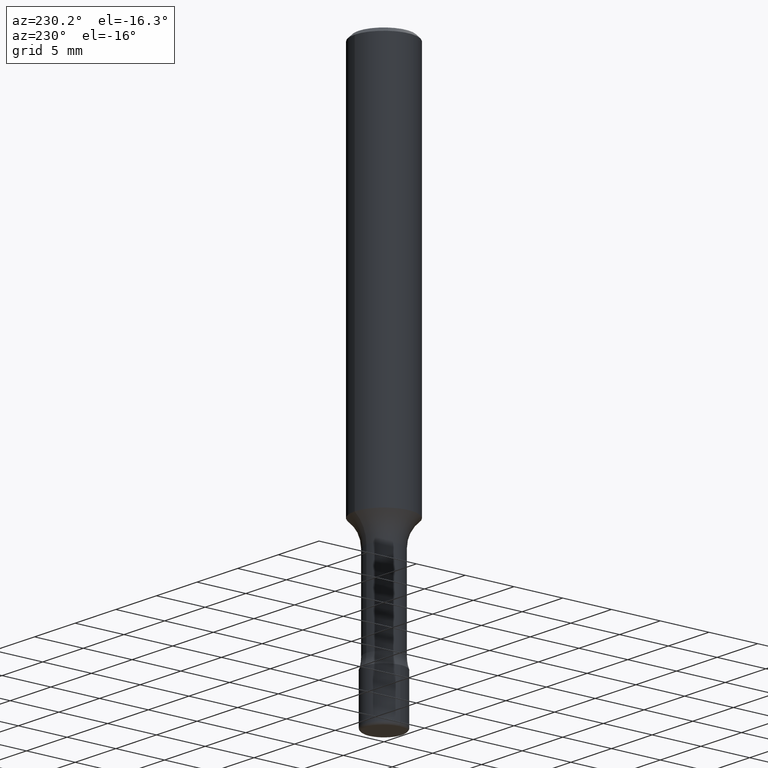
[diagram: clean part render]
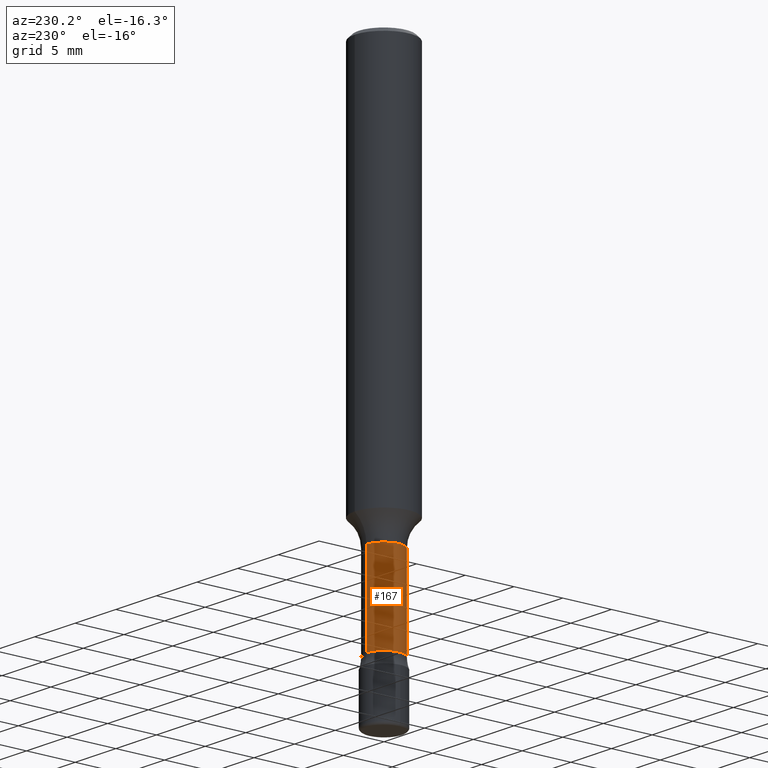
[diagram: same view with one face highlighted and labeled with its STEP entity id]
A machine part, auxiliary view. The second image highlights one B-rep face of the part: STEP entity #167.
In plain terms, the highlighted cylindrical surface (edge-blend (fillet) strip) has radius 1.8034 mm, axis along (-0, 0, 1).
Its self-contained STEP definition (entity closure, byte-faithful):
#2 = CARTESIAN_POINT ( 'NONE',  ( -4.957903501156845310E-16, -0.07100000000000578071, -1.653499999999999748 ) ) ;
#3 = ORIENTED_EDGE ( 'NONE', *, *, #216, .T. ) ;
#6 = CARTESIAN_POINT ( 'NONE',  ( 4.042623480343631628E-29, -5.774538009429644609E-15, -1.653499999999999970 ) ) ;
#10 = CARTESIAN_POINT ( 'NONE',  ( 5.044853423896712842E-16, 0.07100000000000002143, 2.301192418489086903E-16 ) ) ;
#40 = EDGE_CURVE ( 'NONE', #430, #504, #486, .T. ) ;
#43 = DIRECTION ( 'NONE',  ( -6.982962677686265922E-15, -1.000000000000000000, 3.847673230513046609E-15 ) ) ;
#90 = DIRECTION ( 'NONE',  ( -2.444888709007337080E-29, 3.492312071018835321E-15, 1.000000000000000000 ) ) ;
#121 = CIRCLE ( 'NONE', #477, 0.07100000000000000755 ) ;
#140 = CARTESIAN_POINT ( 'NONE',  ( -4.957903501157250587E-16, -0.07100000000000002143, 7.260275559335834854E-16 ) ) ;
#141 = DIRECTION ( 'NONE',  ( -2.444888709007337080E-29, 3.492312071018835321E-15, 1.000000000000000000 ) ) ;
#147 = CARTESIAN_POINT ( 'NONE',  ( -1.169113584055446105E-44, 1.669184350826100908E-30, 4.780733988912460139E-16 ) ) ;
#150 = DIRECTION ( 'NONE',  ( -2.444888709007337080E-29, 3.492312071018835321E-15, 1.000000000000000000 ) ) ;
#153 = FACE_OUTER_BOUND ( 'NONE', #248, .T. ) ;
#167 = ADVANCED_FACE ( 'NONE', ( #153 ), #509, .T. ) ;
#193 = VERTEX_POINT ( 'NONE', #238 ) ;
#202 = CARTESIAN_POINT ( 'NONE',  ( -4.957903501156761493E-16, -0.07100000000000704359, -2.003870593126606980 ) ) ;
#206 = DIRECTION ( 'NONE',  ( -2.444888709007337080E-29, 3.492312071018835321E-15, 1.000000000000000000 ) ) ;
#216 = EDGE_CURVE ( 'NONE', #329, #430, #277, .T. ) ;
#238 = CARTESIAN_POINT ( 'NONE',  ( 6.718181566612139372E-16, 0.07099999999999423439, -1.653500000000000192 ) ) ;
#248 = EDGE_LOOP ( 'NONE', ( #389, #3, #423, #511 ) ) ;
#264 = CARTESIAN_POINT ( 'NONE',  ( 4.899240587447077474E-29, -6.998141461135724120E-15, -2.003870593126607424 ) ) ;
#272 = VECTOR ( 'NONE', #293, 39.37007874015748143 ) ;
#277 = CIRCLE ( 'NONE', #434, 0.07100000000000003531 ) ;
#285 = LINE ( 'NONE', #10, #272 ) ;
#293 = DIRECTION ( 'NONE',  ( -2.444888709007337080E-29, 3.492312071018835321E-15, 1.000000000000000000 ) ) ;
#329 = VERTEX_POINT ( 'NONE', #344 ) ;
#344 = CARTESIAN_POINT ( 'NONE',  ( 5.044853423897160521E-16, 0.07099999999999305478, -2.003870593126607869 ) ) ;
#348 = VECTOR ( 'NONE', #206, 39.37007874015748143 ) ;
#389 = ORIENTED_EDGE ( 'NONE', *, *, #407, .F. ) ;
#398 = DIRECTION ( 'NONE',  ( -6.982962677686266711E-15, -1.000000000000000000, 3.492312071018835716E-15 ) ) ;
#404 = EDGE_CURVE ( 'NONE', #193, #504, #121, .T. ) ;
#407 = EDGE_CURVE ( 'NONE', #329, #193, #285, .T. ) ;
#423 = ORIENTED_EDGE ( 'NONE', *, *, #40, .T. ) ;
#430 = VERTEX_POINT ( 'NONE', #202 ) ;
#434 = AXIS2_PLACEMENT_3D ( 'NONE', #264, #141, #498 ) ;
#477 = AXIS2_PLACEMENT_3D ( 'NONE', #6, #90, #43 ) ;
#486 = LINE ( 'NONE', #140, #348 ) ;
#498 = DIRECTION ( 'NONE',  ( -6.982962677686266711E-15, -1.000000000000000000, 3.847673230513045031E-15 ) ) ;
#502 = AXIS2_PLACEMENT_3D ( 'NONE', #147, #150, #398 ) ;
#504 = VERTEX_POINT ( 'NONE', #2 ) ;
#509 = CYLINDRICAL_SURFACE ( 'NONE', #502, 0.07100000000000002143 ) ;
#511 = ORIENTED_EDGE ( 'NONE', *, *, #404, .F. ) ;